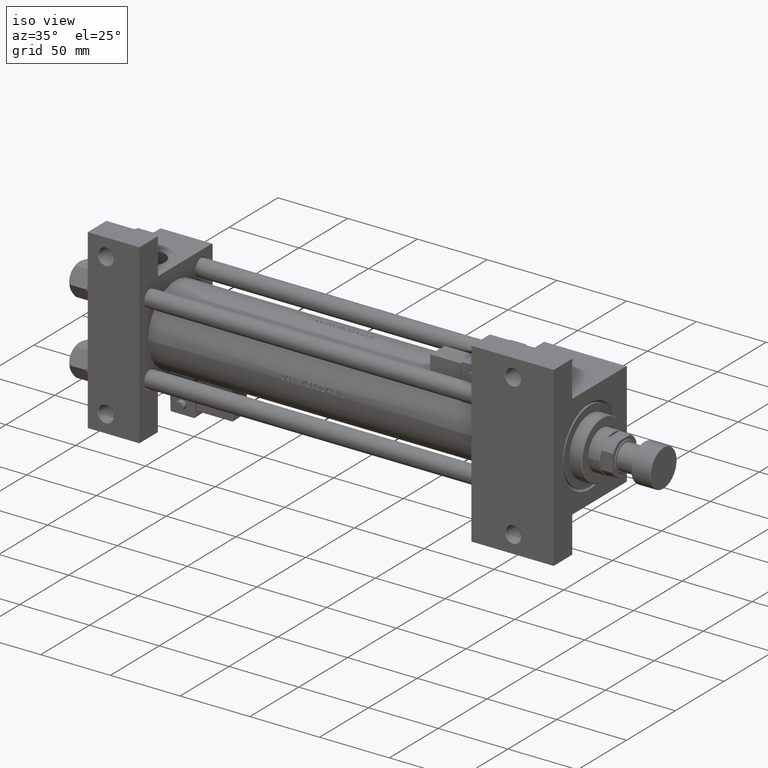
[diagram: clean part render]
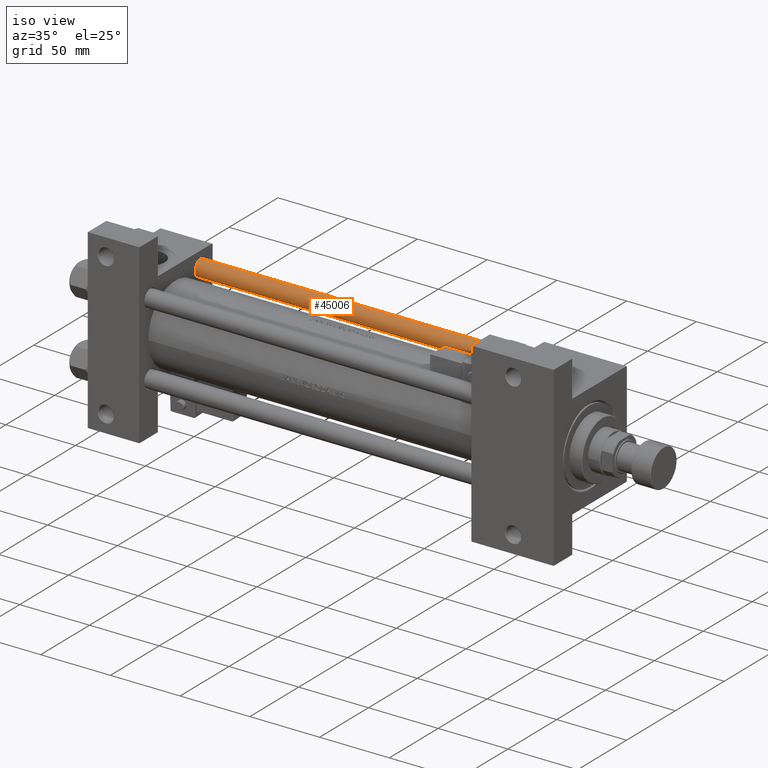
[diagram: same view with one face highlighted and labeled with its STEP entity id]
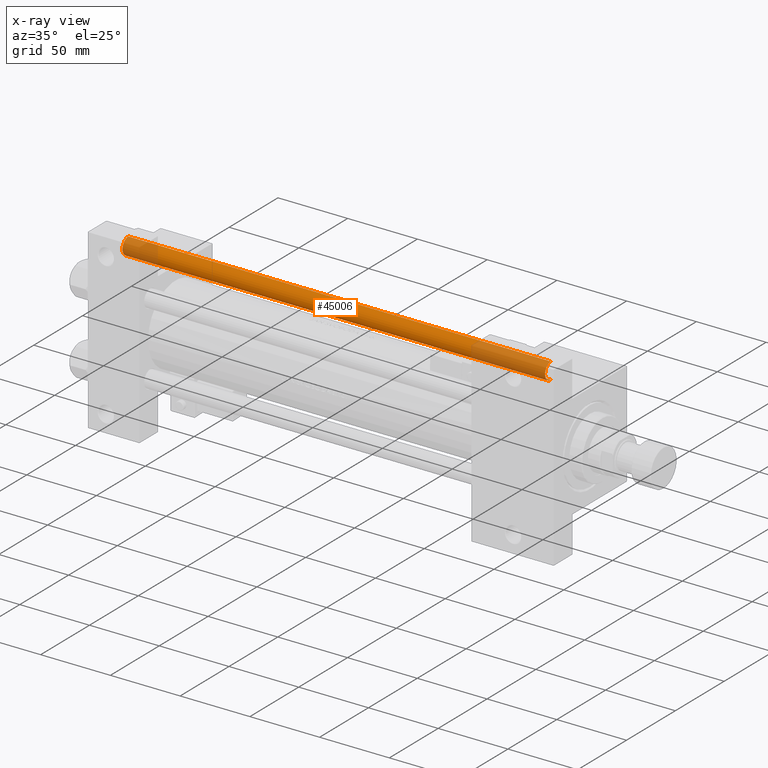
[diagram: x-ray of the same camera — body ghosted, the highlighted face saturated]
A machine part, iso view. The second image highlights one B-rep face of the part: STEP entity #45006.
The next image is the same camera in x-ray: the body ghosted, the highlighted face saturated — about 26% of this face is hidden behind the body in this view.
In plain terms, the highlighted cylindrical surface (edge-blend (fillet) strip) has radius 6 mm, axis along (-1, -0, -0).
Its self-contained STEP definition (entity closure, byte-faithful):
#1080 = DIRECTION ( 'NONE',  ( 0.000000000000000000, 0.000000000000000000, -1.000000000000000000 ) ) ;
#2305 = CYLINDRICAL_SURFACE ( 'NONE', #42007, 6.000000000000000888 ) ;
#3470 = CARTESIAN_POINT ( 'NONE',  ( 0.000000000000000000, 0.000000000000000000, 303.5000000000000000 ) ) ;
#7173 = DIRECTION ( 'NONE',  ( -0.000000000000000000, -0.000000000000000000, 1.000000000000000000 ) ) ;
#10164 = ORIENTED_EDGE ( 'NONE', *, *, #15794, .F. ) ;
#10395 = VECTOR ( 'NONE', #39417, 1000.000000000000000 ) ;
#10400 = EDGE_CURVE ( 'NONE', #13376, #15680, #51511, .T. ) ;
#12589 = DIRECTION ( 'NONE',  ( -0.000000000000000000, -0.000000000000000000, -1.000000000000000000 ) ) ;
#12965 = DIRECTION ( 'NONE',  ( 1.000000000000000000, 0.000000000000000000, 0.000000000000000000 ) ) ;
#13376 = VERTEX_POINT ( 'NONE', #31644 ) ;
#15680 = VERTEX_POINT ( 'NONE', #30713 ) ;
#15794 = EDGE_CURVE ( 'NONE', #22539, #15680, #20124, .T. ) ;
#16088 = AXIS2_PLACEMENT_3D ( 'NONE', #18802, #7173, #43102 ) ;
#16159 = CIRCLE ( 'NONE', #22925, 6.000000000000000888 ) ;
#17073 = CARTESIAN_POINT ( 'NONE',  ( -6.000000000000000888, 0.000000000000000000, 304.0000000000000000 ) ) ;
#18416 = DIRECTION ( 'NONE',  ( -1.000000000000000000, 0.000000000000000000, 0.000000000000000000 ) ) ;
#18802 = CARTESIAN_POINT ( 'NONE',  ( 0.000000000000000000, 0.000000000000000000, 0.4999999999999449329 ) ) ;
#19342 = CARTESIAN_POINT ( 'NONE',  ( 6.000000000000000888, 7.347880794884120722E-16, 304.0000000000000000 ) ) ;
#20124 = LINE ( 'NONE', #19342, #10395 ) ;
#22313 = VERTEX_POINT ( 'NONE', #29807 ) ;
#22539 = VERTEX_POINT ( 'NONE', #24465 ) ;
#22848 = VECTOR ( 'NONE', #12589, 1000.000000000000000 ) ;
#22888 = DIRECTION ( 'NONE',  ( -0.000000000000000000, -0.000000000000000000, -1.000000000000000000 ) ) ;
#22925 = AXIS2_PLACEMENT_3D ( 'NONE', #3470, #1080, #12965 ) ;
#24465 = CARTESIAN_POINT ( 'NONE',  ( 6.000000000000000888, 7.347880794884120722E-16, 303.5000000000000000 ) ) ;
#24742 = LINE ( 'NONE', #17073, #22848 ) ;
#25416 = ORIENTED_EDGE ( 'NONE', *, *, #26496, .T. ) ;
#26496 = EDGE_CURVE ( 'NONE', #22313, #13376, #24742, .T. ) ;
#27121 = EDGE_LOOP ( 'NONE', ( #10164, #40913, #25416, #28823 ) ) ;
#28823 = ORIENTED_EDGE ( 'NONE', *, *, #10400, .T. ) ;
#29807 = CARTESIAN_POINT ( 'NONE',  ( -6.000000000000000888, 0.000000000000000000, 303.5000000000000000 ) ) ;
#30713 = CARTESIAN_POINT ( 'NONE',  ( 6.000000000000000888, 7.347880794884120722E-16, 0.4999999999999449329 ) ) ;
#31056 = CARTESIAN_POINT ( 'NONE',  ( 0.000000000000000000, 0.000000000000000000, 304.0000000000000000 ) ) ;
#31644 = CARTESIAN_POINT ( 'NONE',  ( -6.000000000000000888, 0.000000000000000000, 0.4999999999999449329 ) ) ;
#39417 = DIRECTION ( 'NONE',  ( -0.000000000000000000, -0.000000000000000000, -1.000000000000000000 ) ) ;
#40913 = ORIENTED_EDGE ( 'NONE', *, *, #51541, .T. ) ;
#42007 = AXIS2_PLACEMENT_3D ( 'NONE', #31056, #22888, #18416 ) ;
#43102 = DIRECTION ( 'NONE',  ( 1.000000000000000000, 0.000000000000000000, 0.000000000000000000 ) ) ;
#45006 = ADVANCED_FACE ( 'NONE', ( #50392 ), #2305, .T. ) ;
#50392 = FACE_OUTER_BOUND ( 'NONE', #27121, .T. ) ;
#51511 = CIRCLE ( 'NONE', #16088, 6.000000000000000888 ) ;
#51541 = EDGE_CURVE ( 'NONE', #22539, #22313, #16159, .T. ) ;